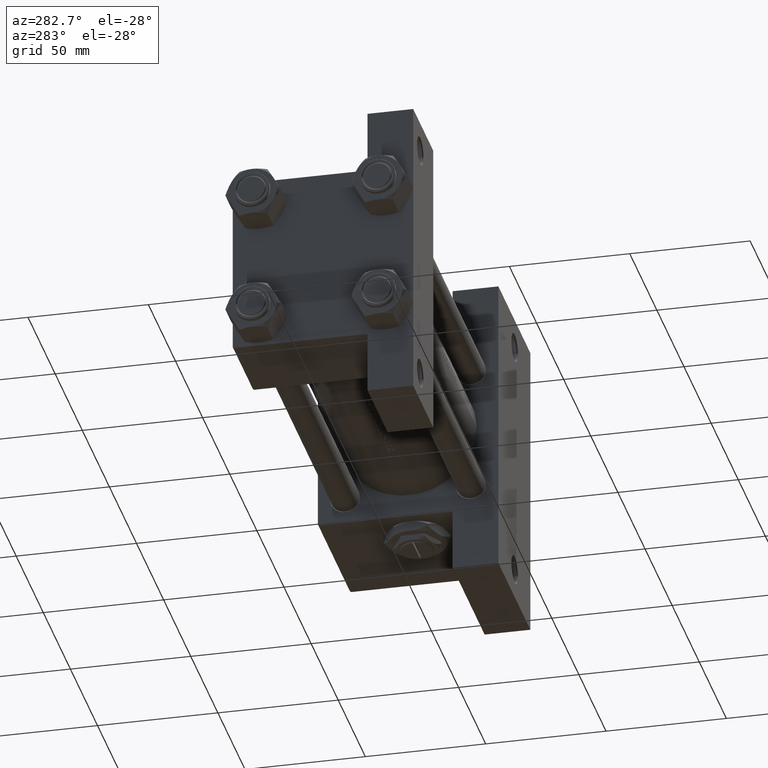
[diagram: clean part render]
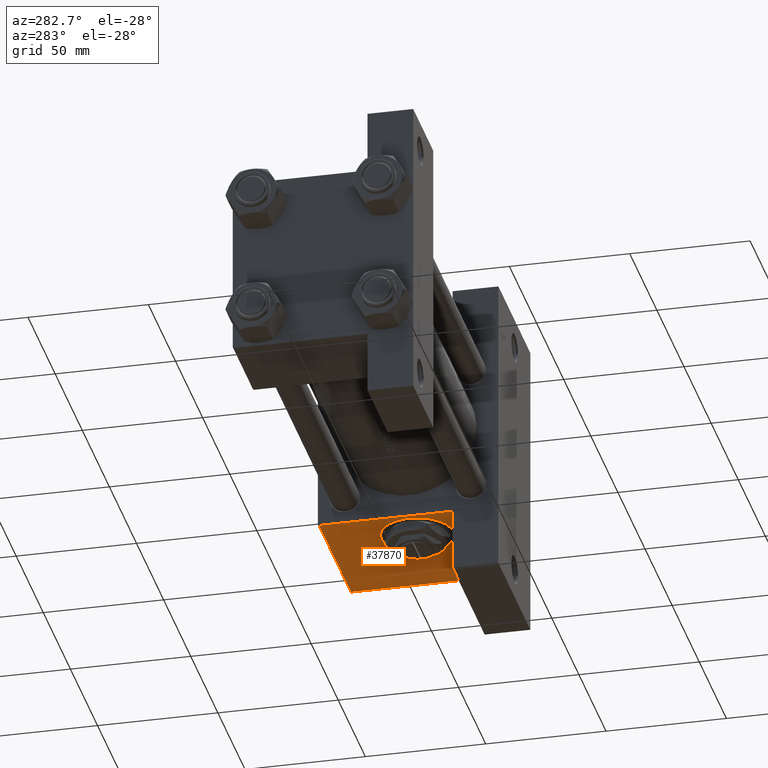
[diagram: same view with one face highlighted and labeled with its STEP entity id]
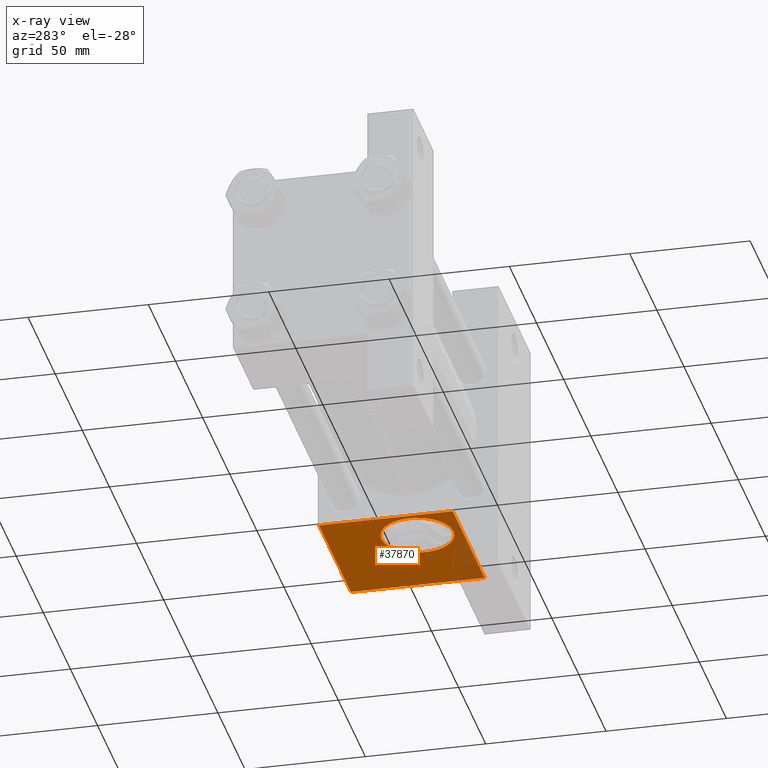
[diagram: x-ray of the same camera — body ghosted, the highlighted face saturated]
A machine part, auxiliary view. The second image highlights one B-rep face of the part: STEP entity #37870.
The next image is the same camera in x-ray: the body ghosted, the highlighted face saturated — about 12% of this face is hidden behind the body in this view.
In plain terms, the highlighted planar face has unit normal (0, 0, -1).
Its self-contained STEP definition (entity closure, byte-faithful):
#480 = VECTOR ( 'NONE', #4806, 1000.000000000000000 ) ;
#608 = DIRECTION ( 'NONE',  ( 0.000000000000000000, 0.000000000000000000, 1.000000000000000000 ) ) ;
#731 = DIRECTION ( 'NONE',  ( 1.000000000000000000, 0.000000000000000000, 0.000000000000000000 ) ) ;
#2274 = CARTESIAN_POINT ( 'NONE',  ( 216.0000000000000000, 37.50000000000000000, 36.99999999999999289 ) ) ;
#3283 = AXIS2_PLACEMENT_3D ( 'NONE', #4828, #12800, #608 ) ;
#3715 = VECTOR ( 'NONE', #731, 1000.000000000000000 ) ;
#4806 = DIRECTION ( 'NONE',  ( -1.000000000000000000, 5.880418562633242031E-16, -0.000000000000000000 ) ) ;
#4828 = CARTESIAN_POINT ( 'NONE',  ( 174.0000000000000000, 37.50000000000000000, 0.000000000000000000 ) ) ;
#5003 = VERTEX_POINT ( 'NONE', #26804 ) ;
#5883 = VERTEX_POINT ( 'NONE', #45122 ) ;
#8988 = CARTESIAN_POINT ( 'NONE',  ( 157.0000000000000000, 37.50000000000000000, 37.49999999999999289 ) ) ;
#9077 = PLANE ( 'NONE',  #13261 ) ;
#9682 = LINE ( 'NONE', #40044, #45881 ) ;
#10154 = ORIENTED_EDGE ( 'NONE', *, *, #48868, .F. ) ;
#11128 = DIRECTION ( 'NONE',  ( 0.000000000000000000, 1.000000000000000000, 0.000000000000000000 ) ) ;
#12588 = VERTEX_POINT ( 'NONE', #34256 ) ;
#12800 = DIRECTION ( 'NONE',  ( 0.000000000000000000, 1.000000000000000000, 0.000000000000000000 ) ) ;
#12962 = VERTEX_POINT ( 'NONE', #31186 ) ;
#13261 = AXIS2_PLACEMENT_3D ( 'NONE', #28001, #28261, #21044 ) ;
#13290 = ORIENTED_EDGE ( 'NONE', *, *, #33143, .F. ) ;
#14857 = CIRCLE ( 'NONE', #25194, 15.00000000000002487 ) ;
#15791 = CARTESIAN_POINT ( 'NONE',  ( 157.0000000000000000, 37.50000000000000000, -18.50000000000000000 ) ) ;
#16479 = LINE ( 'NONE', #8988, #36282 ) ;
#18601 = CARTESIAN_POINT ( 'NONE',  ( 174.0000000000000000, 37.50000000000000000, 0.000000000000000000 ) ) ;
#21044 = DIRECTION ( 'NONE',  ( 0.000000000000000000, -0.000000000000000000, 1.000000000000000000 ) ) ;
#22361 = EDGE_LOOP ( 'NONE', ( #13290, #47210, #32217, #32112 ) ) ;
#25052 = EDGE_LOOP ( 'NONE', ( #10154, #36795 ) ) ;
#25194 = AXIS2_PLACEMENT_3D ( 'NONE', #18601, #11128, #26316 ) ;
#26316 = DIRECTION ( 'NONE',  ( 0.000000000000000000, 0.000000000000000000, 1.000000000000000000 ) ) ;
#26804 = CARTESIAN_POINT ( 'NONE',  ( 174.0000000000000000, 37.50000000000000000, -15.00000000000002487 ) ) ;
#28001 = CARTESIAN_POINT ( 'NONE',  ( 216.0000000000000000, 37.50000000000000000, 37.49999999999999289 ) ) ;
#28261 = DIRECTION ( 'NONE',  ( -0.000000000000000000, 1.000000000000000000, 0.000000000000000000 ) ) ;
#30358 = CARTESIAN_POINT ( 'NONE',  ( 157.0000000000000000, 37.50000000000000000, -18.50000000000000355 ) ) ;
#30964 = LINE ( 'NONE', #15791, #480 ) ;
#31186 = CARTESIAN_POINT ( 'NONE',  ( 157.0000000000000000, 37.50000000000000000, 36.99999999999999289 ) ) ;
#32112 = ORIENTED_EDGE ( 'NONE', *, *, #32213, .T. ) ;
#32213 = EDGE_CURVE ( 'NONE', #5883, #44351, #30964, .T. ) ;
#32217 = ORIENTED_EDGE ( 'NONE', *, *, #34480, .T. ) ;
#33143 = EDGE_CURVE ( 'NONE', #12962, #44351, #16479, .T. ) ;
#33400 = VERTEX_POINT ( 'NONE', #38081 ) ;
#34159 = EDGE_CURVE ( 'NONE', #12962, #12588, #36387, .T. ) ;
#34256 = CARTESIAN_POINT ( 'NONE',  ( 216.0000000000000000, 37.50000000000000000, 36.99999999999999289 ) ) ;
#34480 = EDGE_CURVE ( 'NONE', #12588, #5883, #9682, .T. ) ;
#36282 = VECTOR ( 'NONE', #46846, 1000.000000000000000 ) ;
#36324 = DIRECTION ( 'NONE',  ( 0.000000000000000000, 0.000000000000000000, -1.000000000000000000 ) ) ;
#36387 = LINE ( 'NONE', #2274, #3715 ) ;
#36795 = ORIENTED_EDGE ( 'NONE', *, *, #36908, .F. ) ;
#36908 = EDGE_CURVE ( 'NONE', #5003, #33400, #14857, .T. ) ;
#37870 = ADVANCED_FACE ( 'NONE', ( #47176, #44168 ), #9077, .T. ) ;
#38081 = CARTESIAN_POINT ( 'NONE',  ( 174.0000000000000000, 37.50000000000000000, 15.00000000000002487 ) ) ;
#40044 = CARTESIAN_POINT ( 'NONE',  ( 216.0000000000000000, 37.50000000000000000, 37.49999999999999289 ) ) ;
#44168 = FACE_OUTER_BOUND ( 'NONE', #22361, .T. ) ;
#44351 = VERTEX_POINT ( 'NONE', #30358 ) ;
#45122 = CARTESIAN_POINT ( 'NONE',  ( 216.0000000000000284, 37.49999999999996447, -18.50000000000000000 ) ) ;
#45881 = VECTOR ( 'NONE', #36324, 1000.000000000000000 ) ;
#46217 = CIRCLE ( 'NONE', #3283, 15.00000000000002487 ) ;
#46846 = DIRECTION ( 'NONE',  ( 0.000000000000000000, 0.000000000000000000, -1.000000000000000000 ) ) ;
#47176 = FACE_BOUND ( 'NONE', #25052, .T. ) ;
#47210 = ORIENTED_EDGE ( 'NONE', *, *, #34159, .T. ) ;
#48868 = EDGE_CURVE ( 'NONE', #33400, #5003, #46217, .T. ) ;